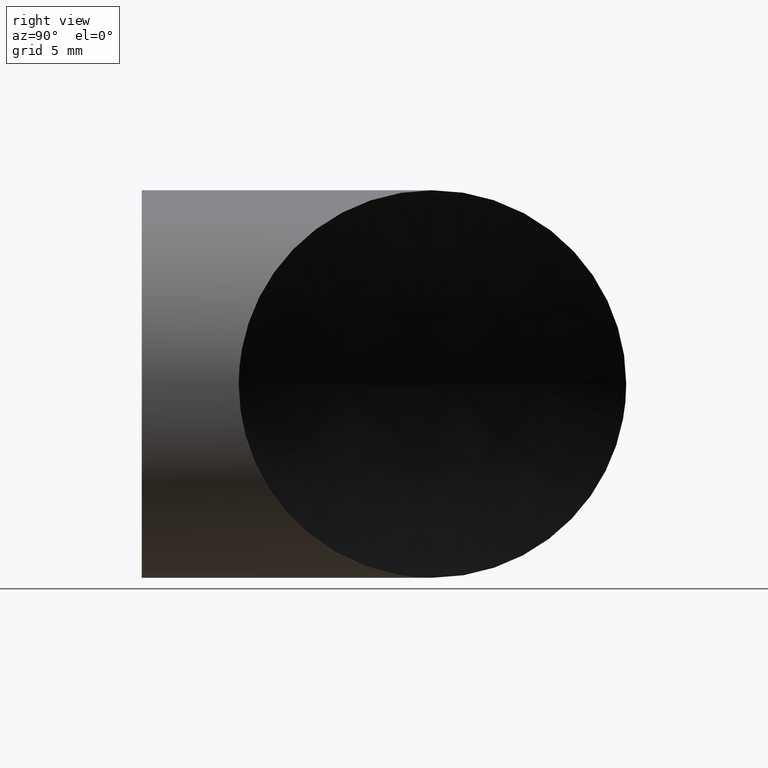
[diagram: clean part render]
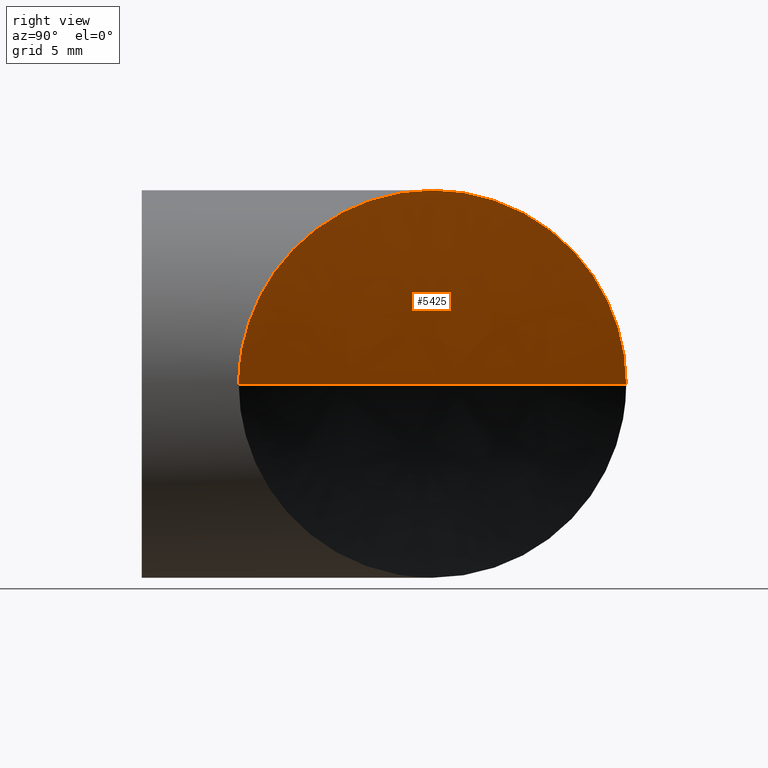
[diagram: same view with one face highlighted and labeled with its STEP entity id]
A machine part, right view. The second image highlights one B-rep face of the part: STEP entity #5425.
In plain terms, the highlighted face is a freeform B-spline surface patch.
Its self-contained STEP definition (entity closure, byte-faithful):
#3793 = CARTESIAN_POINT ( 'NONE',  ( -1.753263333126320700E-012, 19.05375000001852100, 12.70000000000025000 ) ) ;
#3863 = CARTESIAN_POINT ( 'NONE',  ( 1.425506101229625500, 17.62824389878650100, 12.62482813555862800 ) ) ;
#3864 = CARTESIAN_POINT ( 'NONE',  ( 0.7115186284303928200, 18.34223137158572900, 12.68511309915808700 ) ) ;
#3865 = CARTESIAN_POINT ( 'NONE',  ( 0.3553545233585980200, 18.69839547665814500, 12.70000000000005800 ) ) ;
#3866 = CARTESIAN_POINT ( 'NONE',  ( -1.753263333126320700E-012, 19.05375000001852100, 12.70000000000025000 ) ) ;
#3867 = B_SPLINE_CURVE_WITH_KNOTS ( 'NONE', 3,
 ( #3866, #3865, #3864, #3863, #3919, #3918, #3917, #3916, #3915, #3914, #3913, #3912, #3911, #3910, #3909, #3908, #3907, #3906, #3905, #3904, #3903, #3902, #3901, #3900, #3899, #3898, #3897, #3896, #3895, #3894 ),
 .UNSPECIFIED., .F., .F.,
 ( 4, 2, 2, 2, 2, 2, 2, 2, 2, 2, 2, 2, 2, 2, 4 ),
 ( 0.02419946178127503600, 0.02571124430783565400, 0.02722302683439627200, 0.03024659188751749700, 0.03327015694063872200, 0.03478193946719933300, 0.03629372199375995000, 0.03931728704688117900, 0.04082906957344179000, 0.04234085210000240700, 0.04385263462656302500, 0.04536441715312364300, 0.04687619967968425400, 0.04763209094296455600, 0.04838798220624486400 ),
 .UNSPECIFIED. ) ;
#3894 = CARTESIAN_POINT ( 'NONE',  ( 12.70000000000023400, 6.353750000016145100, 1.602868948680232200E-011 ) ) ;
#3895 = CARTESIAN_POINT ( 'NONE',  ( 12.69999999999991800, 6.353750000016464800, 0.2524056031614154100 ) ) ;
#3896 = CARTESIAN_POINT ( 'NONE',  ( 12.69248225410692000, 6.361267745910270200, 0.5051353645574104800 ) ) ;
#3897 = CARTESIAN_POINT ( 'NONE',  ( 12.66221297392122700, 6.391537026095974700, 1.011251754216921700 ) ) ;
#3898 = CARTESIAN_POINT ( 'NONE',  ( 12.63931500635822800, 6.414434993658104200, 1.265761365832677000 ) ) ;
#3899 = CARTESIAN_POINT ( 'NONE',  ( 12.54830468945343300, 6.505445310562894400, 2.021828895184285500 ) ) ;
#3900 = CARTESIAN_POINT ( 'NONE',  ( 12.45874381187088700, 6.595006188146864900, 2.512321702090750900 ) ) ;
#3901 = CARTESIAN_POINT ( 'NONE',  ( 12.22704340532995800, 6.826706594687794700, 3.468640550533373300 ) ) ;
#3902 = CARTESIAN_POINT ( 'NONE',  ( 12.08487534965748200, 6.968874650358878300, 3.934453209037877200 ) ) ;
#3903 = CARTESIAN_POINT ( 'NONE',  ( 11.75046716739118800, 7.303282832625170000, 4.842587698630669700 ) ) ;
#3904 = CARTESIAN_POINT ( 'NONE',  ( 11.56201975668329900, 7.491730243333476500, 5.274679716940131200 ) ) ;
#3905 = CARTESIAN_POINT ( 'NONE',  ( 11.14913429996790300, 7.904615700048874600, 6.099127095864925100 ) ) ;
#3906 = CARTESIAN_POINT ( 'NONE',  ( 10.92453857279676800, 8.129211427220338800, 6.491774042989980800 ) ) ;
#3907 = CARTESIAN_POINT ( 'NONE',  ( 10.44253972988088800, 8.611210270136227900, 7.241687458294664200 ) ) ;
#3908 = CARTESIAN_POINT ( 'NONE',  ( 10.18359195560270300, 8.870158044412653100, 7.600653494619119300 ) ) ;
#3909 = CARTESIAN_POINT ( 'NONE',  ( 9.376145998089699100, 9.677604001925651300, 8.609285735563714700 ) ) ;
#3910 = CARTESIAN_POINT ( 'NONE',  ( 8.795961604366123500, 10.25778839565007200, 9.195963059963208500 ) ) ;
#3911 = CARTESIAN_POINT ( 'NONE',  ( 7.874827980435712900, 11.17892201958048500, 9.971873122185888500 ) ) ;
#3912 = CARTESIAN_POINT ( 'NONE',  ( 7.558758466611337200, 11.49499153340523000, 10.21322209351403000 ) ) ;
#3913 = CARTESIAN_POINT ( 'NONE',  ( 6.912196568876535000, 12.14155343114003200, 10.66143863093640400 ) ) ;
#3914 = CARTESIAN_POINT ( 'NONE',  ( 6.585142786169006600, 12.46860721384716400, 10.86600459586555300 ) ) ;
#3915 = CARTESIAN_POINT ( 'NONE',  ( 5.593803949766870800, 13.45994605024929000, 11.42698573281844800 ) ) ;
#3916 = CARTESIAN_POINT ( 'NONE',  ( 4.919424675196721000, 14.13432532482010000, 11.73111545066778300 ) ) ;
#3917 = CARTESIAN_POINT ( 'NONE',  ( 3.546914930869681900, 15.50683506914715100, 12.21634983638748500 ) ) ;
#3918 = CARTESIAN_POINT ( 'NONE',  ( 2.848753924762737400, 16.20499607525341500, 12.39729633385144500 ) ) ;
#3919 = CARTESIAN_POINT ( 'NONE',  ( 1.784229245425802000, 17.26952075459036400, 12.57919372726496100 ) ) ;
#3944 = FACE_OUTER_BOUND ( 'NONE', #5419, .T. ) ;
#3955 = CARTESIAN_POINT ( 'NONE',  ( -12.70000000000080000, 31.75375000001645600, 4.040052052900619300E-008 ) ) ;
#3957 = B_SPLINE_CURVE_WITH_KNOTS ( 'NONE', 2,
 ( #3976, #3975, #3974 ),
 .UNSPECIFIED., .F., .F.,
 ( 3, 3 ),
 ( 0.5031182426942109000, 0.5040091691782712100 ),
 .UNSPECIFIED. ) ;
#3973 = B_SPLINE_CURVE_WITH_KNOTS ( 'NONE', 3,
 ( #4016, #4015, #4014, #4013, #4012, #4011, #4010, #4009, #4008, #4007, #4006, #4005, #4004, #4003, #4002, #4001, #4000, #3999, #3998, #3997, #3996, #3995, #3994, #3993, #3992, #3991 ),
 .UNSPECIFIED., .F., .F.,
 ( 4, 2, 2, 2, 2, 2, 2, 2, 2, 2, 2, 2, 4 ),
 ( 5.889326400321844400E-011, 0.003024932774190991400, 0.003781165953015423900, 0.004537399131839858600, 0.006049865489488719300, 0.007562331847137580000, 0.009074798204786439800, 0.01058726456243529900, 0.01209973092008415800, 0.01512466363538187600, 0.01814959635067959700, 0.02117452906597731800, 0.02419946178127503600 ),
 .UNSPECIFIED. ) ;
#3974 = CARTESIAN_POINT ( 'NONE',  ( -12.70000000000080000, 31.75375000001645600, 4.040052052900619300E-008 ) ) ;
#3975 = CARTESIAN_POINT ( 'NONE',  ( -3.105155021998484700E-013, 17.46625000001652900, 0.0000000000000000000 ) ) ;
#3976 = CARTESIAN_POINT ( 'NONE',  ( 12.70000000000023400, 6.353750000016145100, 1.602868948680232200E-011 ) ) ;
#3978 = CARTESIAN_POINT ( 'NONE',  ( -11.94388175766626700, 31.92531430021842500, 14.39231674200072700 ) ) ;
#3979 = CARTESIAN_POINT ( 'NONE',  ( -12.54915900146724400, 31.92531430021842100, 9.617162815587718700 ) ) ;
#3980 = CARTESIAN_POINT ( 'NONE',  ( -12.85240000017813200, 31.92531430021842100, 4.813362189052336100 ) ) ;
#3981 = CARTESIAN_POINT ( 'NONE',  ( -12.85240000017899900, 31.92531430021842500, 2.054564200415767200E-011 ) ) ;
#3982 = CARTESIAN_POINT ( 'NONE',  ( 0.8064964424433734800, 17.44708570009375800, 12.77613558987194700 ) ) ;
#3983 = CARTESIAN_POINT ( 'NONE',  ( 0.2691886361401695200, 17.44708570009375800, 8.537206227768352900 ) ) ;
#3984 = CARTESIAN_POINT ( 'NONE',  ( -8.768652037886813700E-011, 17.44708570009375800, 4.272847038658675900 ) ) ;
#3985 = CARTESIAN_POINT ( 'NONE',  ( -8.845355004005739400E-011, 17.44708570009375800, 1.823847492600392300E-011 ) ) ;
#3986 = CARTESIAN_POINT ( 'NONE',  ( 13.55687464255301600, 6.220514300014912100, 11.15995443774316700 ) ) ;
#3987 = CARTESIAN_POINT ( 'NONE',  ( 13.08753627374758500, 6.220514300014912100, 7.457249639948988900 ) ) ;
#3988 = CARTESIAN_POINT ( 'NONE',  ( 12.85240000000276500, 6.220514300014912100, 3.732331888265015600 ) ) ;
#3989 = CARTESIAN_POINT ( 'NONE',  ( 12.85240000000209500, 6.220514300014912100, 1.593130784785016800E-011 ) ) ;
#3990 =( BOUNDED_SURFACE ( )  B_SPLINE_SURFACE ( 2, 3, ( 
 ( #3989, #3988, #3987, #3986 ),
 ( #3985, #3984, #3983, #3982 ),
 ( #3981, #3980, #3979, #3978 ) ),
 .UNSPECIFIED., .F., .F., .F. ) 
 B_SPLINE_SURFACE_WITH_KNOTS ( ( 3, 3 ),
 ( 4, 4 ),
 ( 0.5031128971353064900, 0.5040145147371818400 ),
 ( 0.0000000000000000000, 1.000000000000000000 ),
 .UNSPECIFIED. ) 
 GEOMETRIC_REPRESENTATION_ITEM ( )  RATIONAL_B_SPLINE_SURFACE ( (
 ( 1.000000000000000000, 0.9986756918039339000, 0.9986756918039339000, 1.000000000000000000),
 ( 1.000000000000000000, 0.9986756918039339000, 0.9986756918039339000, 1.000000000000000000),
 ( 1.000000000000000000, 0.9986756918039339000, 0.9986756918039339000, 1.000000000000000000) ) ) 
 REPRESENTATION_ITEM ( '' )  SURFACE ( )  );
#3991 = CARTESIAN_POINT ( 'NONE',  ( -1.753263333126320700E-012, 19.05375000001852100, 12.70000000000025000 ) ) ;
#3992 = CARTESIAN_POINT ( 'NONE',  ( -0.7110305248004263900, 19.76478052481718000, 12.69999999999990700 ) ) ;
#3993 = CARTESIAN_POINT ( 'NONE',  ( -1.418836719991841700, 20.47258672000759500, 12.64070978318103900 ) ) ;
#3994 = CARTESIAN_POINT ( 'NONE',  ( -2.827903066541931100, 21.88165306655767500, 12.40175816998738200 ) ) ;
#3995 = CARTESIAN_POINT ( 'NONE',  ( -3.529169102002431800, 22.58291910201940300, 12.22220497274679100 ) ) ;
#3996 = CARTESIAN_POINT ( 'NONE',  ( -4.924449598921655500, 23.97819959893863700, 11.72975383774294900 ) ) ;
#3997 = CARTESIAN_POINT ( 'NONE',  ( -5.604672049573097500, 24.65842204958914200, 11.42160329162421600 ) ) ;
#3998 = CARTESIAN_POINT ( 'NONE',  ( -6.924331551200226400, 25.97808155121626700, 10.67328455085687200 ) ) ;
#3999 = CARTESIAN_POINT ( 'NONE',  ( -7.564385554043782100, 26.61813555405938200, 10.23324721313693400 ) ) ;
#4000 = CARTESIAN_POINT ( 'NONE',  ( -8.488891910812506900, 27.54264191082808500, 9.454683149656215600 ) ) ;
#4001 = CARTESIAN_POINT ( 'NONE',  ( -8.791613841317794000, 27.84536384133385000, 9.174413924044815300 ) ) ;
#4002 = CARTESIAN_POINT ( 'NONE',  ( -9.372001451011254100, 28.42575145102732400, 8.580672094119499600 ) ) ;
#4003 = CARTESIAN_POINT ( 'NONE',  ( -9.651102186786388900, 28.70485218680328300, 8.266132818099375600 ) ) ;
#4004 = CARTESIAN_POINT ( 'NONE',  ( -10.18508200082222000, 29.23883200083911800, 7.598475493332837300 ) ) ;
#4005 = CARTESIAN_POINT ( 'NONE',  ( -10.43997829939669200, 29.49372829941316700, 7.245384872048753700 ) ) ;
#4006 = CARTESIAN_POINT ( 'NONE',  ( -10.92232927318535500, 29.97607927320183000, 6.495496292363279500 ) ) ;
#4007 = CARTESIAN_POINT ( 'NONE',  ( -11.15093544987721500, 30.20468544989363500, 6.096039281344979500 ) ) ;
#4008 = CARTESIAN_POINT ( 'NONE',  ( -11.56584085529908500, 30.61959085531550800, 5.266534119980989600 ) ) ;
#4009 = CARTESIAN_POINT ( 'NONE',  ( -11.75323992313959700, 30.80698992315574400, 4.835342592210222000 ) ) ;
#4010 = CARTESIAN_POINT ( 'NONE',  ( -12.00124309038382000, 31.05499309039996400, 4.161425351275965100 ) ) ;
#4011 = CARTESIAN_POINT ( 'NONE',  ( -12.07837882590157400, 31.13212882591694400, 3.932251430248436800 ) ) ;
#4012 = CARTESIAN_POINT ( 'NONE',  ( -12.22084236529817000, 31.27459236531353400, 3.464224048067891200 ) ) ;
#4013 = CARTESIAN_POINT ( 'NONE',  ( -12.28635049591580100, 31.34010049593192400, 3.224447760317337600 ) ) ;
#4014 = CARTESIAN_POINT ( 'NONE',  ( -12.57757196398646300, 31.63132196400259800, 2.019463634380013400 ) ) ;
#4015 = CARTESIAN_POINT ( 'NONE',  ( -12.70000006901140200, 31.75375007765435200, 1.026034504010541000 ) ) ;
#4016 = CARTESIAN_POINT ( 'NONE',  ( -12.70000000000080000, 31.75375000001645600, 4.040052052900619300E-008 ) ) ;
#4186 = CARTESIAN_POINT ( 'NONE',  ( 12.70000000000023400, 6.353750000016145100, 1.602868948680232200E-011 ) ) ;
#5390 = ORIENTED_EDGE ( 'NONE', *, *, #5427, .T. ) ;
#5392 = ORIENTED_EDGE ( 'NONE', *, *, #5394, .T. ) ;
#5394 = EDGE_CURVE ( 'NONE', #5395, #5487, #3867, .T. ) ;
#5395 = VERTEX_POINT ( 'NONE', #3793 ) ;
#5419 = EDGE_LOOP ( 'NONE', ( #5392, #5390, #5429 ) ) ;
#5425 = ADVANCED_FACE ( 'NONE', ( #3944 ), #3990, .T. ) ;
#5427 = EDGE_CURVE ( 'NONE', #5487, #5428, #3957, .T. ) ;
#5428 = VERTEX_POINT ( 'NONE', #3955 ) ;
#5429 = ORIENTED_EDGE ( 'NONE', *, *, #5430, .T. ) ;
#5430 = EDGE_CURVE ( 'NONE', #5428, #5395, #3973, .T. ) ;
#5487 = VERTEX_POINT ( 'NONE', #4186 ) ;